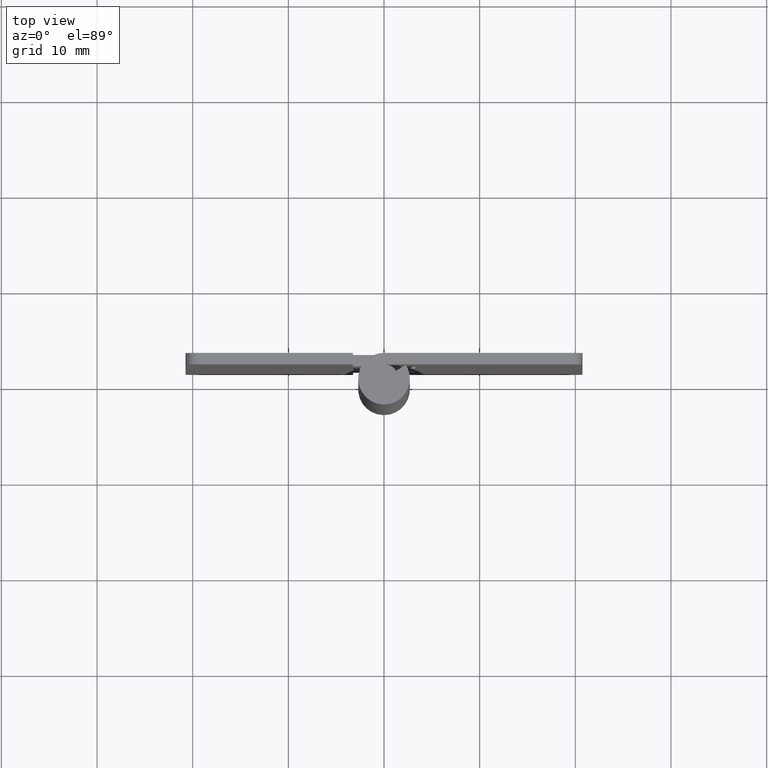
[diagram: clean part render]
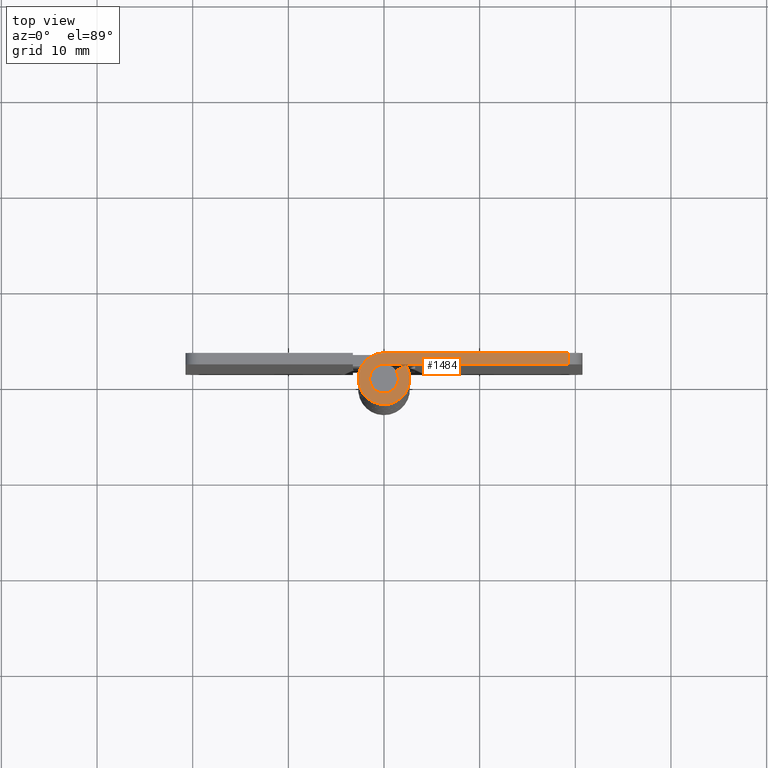
[diagram: same view with one face highlighted and labeled with its STEP entity id]
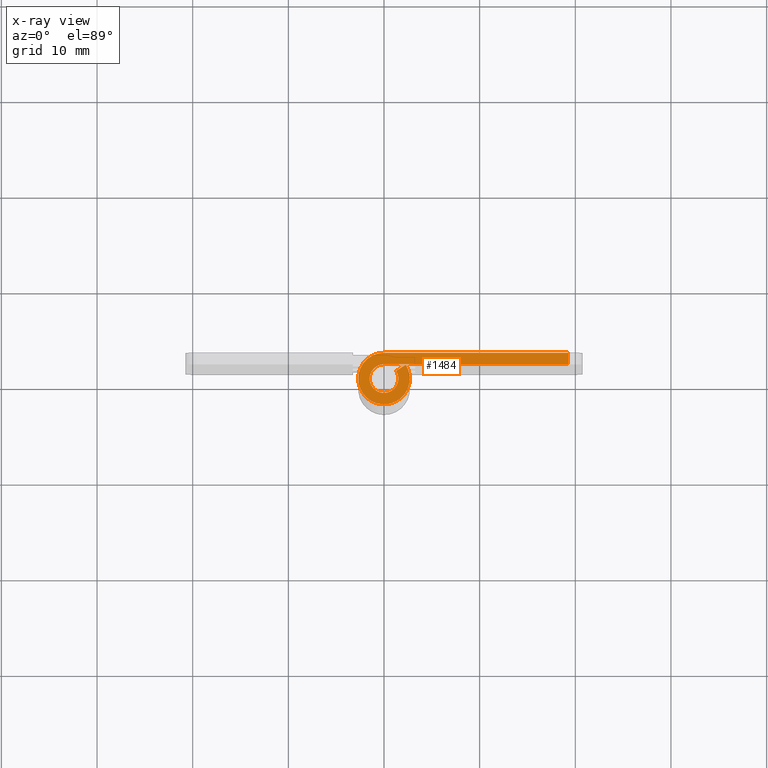
[diagram: x-ray of the same camera — body ghosted, the highlighted face saturated]
A machine part, top view. The second image highlights one B-rep face of the part: STEP entity #1484.
The next image is the same camera in x-ray: the body ghosted, the highlighted face saturated — about 0% of this face is hidden behind the body in this view.
In plain terms, the highlighted face is a freeform B-spline surface patch.
Its self-contained STEP definition (entity closure, byte-faithful):
#885=CARTESIAN_POINT('',(19.250000000000000,2.700001000000000,63.999992000000013));
#886=VERTEX_POINT('',#885);
#902=CARTESIAN_POINT('',(19.250000000000000,1.500000000000000,63.999992000000013));
#903=VERTEX_POINT('',#902);
#904=CARTESIAN_POINT('',(19.250000000000000,1.500000000000000,63.999992000000013));
#905=CARTESIAN_POINT('',(19.250000000000000,2.700001000000000,63.999992000000013));
#906=QUASI_UNIFORM_CURVE('',1,(#904,#905),.UNSPECIFIED.,.F.,.U.);
#907=EDGE_CURVE('',#903,#886,#906,.T.);
#1415=CARTESIAN_POINT('',(-3.796164023793855,-2.968774374443775,63.999992000000013));
#1416=CARTESIAN_POINT('',(20.346391703025741,-2.968774374443775,63.999992000000013));
#1417=CARTESIAN_POINT('',(-3.796164023793855,2.969685719784166,63.999992000000013));
#1418=CARTESIAN_POINT('',(20.346391703025741,2.969685719784166,63.999992000000013));
#1419=B_SPLINE_SURFACE_WITH_KNOTS('',1,1,((#1415,#1417),(#1416,#1418)),.UNSPECIFIED.,.F.,.F.,.U.,(2,2),(2,2),(0.0,24.142555726819591),(0.0,5.938460094227940),.UNSPECIFIED.);
#1420=CARTESIAN_POINT('',(0.0,1.500000000000000,63.999992000000113));
#1421=VERTEX_POINT('',#1420);
#1422=CARTESIAN_POINT('',(19.250000000000000,1.500000000000000,63.999992000000013));
#1423=CARTESIAN_POINT('',(0.0,1.500000000000000,63.999992000000113));
#1424=QUASI_UNIFORM_CURVE('',1,(#1422,#1423),.UNSPECIFIED.,.F.,.U.);
#1425=EDGE_CURVE('',#903,#1421,#1424,.T.);
#1426=ORIENTED_EDGE('',*,*,#1425,.F.);
#1427=ORIENTED_EDGE('',*,*,#907,.T.);
#1428=CARTESIAN_POINT('',(-4.959658E-016,2.700001000000000,63.999992000000113));
#1429=VERTEX_POINT('',#1428);
#1430=CARTESIAN_POINT('',(-4.959658E-016,2.700001000000000,63.999992000000113));
#1431=CARTESIAN_POINT('',(19.250000000000000,2.700001000000000,63.999992000000013));
#1432=QUASI_UNIFORM_CURVE('',1,(#1430,#1431),.UNSPECIFIED.,.F.,.U.);
#1433=EDGE_CURVE('',#1429,#886,#1432,.T.);
#1434=ORIENTED_EDGE('',*,*,#1433,.F.);
#1435=CARTESIAN_POINT('',(2.277608394786075,1.450000000000000,63.999992000000113));
#1436=VERTEX_POINT('',#1435);
#1437=CARTESIAN_POINT('',(2.277608394786075,1.450000000000000,63.999992000000113));
#1438=CARTESIAN_POINT('',(3.402759869743915,-0.317349209314442,63.999992000000105));
#1439=CARTESIAN_POINT('',(1.970201480756561,-1.846160747254171,63.999992000000113));
#1440=CARTESIAN_POINT('',(0.537643091769208,-3.374972285193899,63.999992000000105));
#1441=CARTESIAN_POINT('',(-1.299039008581214,-2.366961220879324,63.999992000000113));
#1442=CARTESIAN_POINT('',(-3.135721108931638,-1.358950156564748,63.999992000000105));
#1443=CARTESIAN_POINT('',(-2.615415633023442,0.670525611543911,63.999992000000113));
#1444=CARTESIAN_POINT('',(-2.095110157115246,2.700001379652570,63.999992000000105));
#1445=CARTESIAN_POINT('',(-4.959658E-016,2.700001000000000,63.999992000000113));
#1453=(BOUNDED_CURVE()B_SPLINE_CURVE(2,(#1437,#1438,#1439,#1440,#1441,#1442,#1443,#1444,#1445),.UNSPECIFIED.,.F.,.U.)B_SPLINE_CURVE_WITH_KNOTS((3,2,2,2,3),(0.0,0.250000000000000,0.500000000000000,0.750000000000000,1.0),.UNSPECIFIED.)CURVE()GEOMETRIC_REPRESENTATION_ITEM()RATIONAL_B_SPLINE_CURVE((1.0,0.790045133626194,1.0,0.790045133626194,1.0,0.790045133626194,1.0,0.790045133626194,1.0))REPRESENTATION_ITEM(''));
#1454=EDGE_CURVE('',#1436,#1429,#1453,.T.);
#1455=ORIENTED_EDGE('',*,*,#1454,.F.);
#1456=CARTESIAN_POINT('',(1.265337997103374,0.805555555555557,63.999992000000113));
#1457=VERTEX_POINT('',#1456);
#1458=CARTESIAN_POINT('',(1.265337997103374,0.805555555555557,63.999992000000113));
#1459=CARTESIAN_POINT('',(2.277608394786075,1.450000000000000,63.999992000000113));
#1460=QUASI_UNIFORM_CURVE('',1,(#1458,#1459),.UNSPECIFIED.,.F.,.U.);
#1461=EDGE_CURVE('',#1457,#1436,#1460,.T.);
#1462=ORIENTED_EDGE('',*,*,#1461,.F.);
#1463=CARTESIAN_POINT('',(1.265337997103374,0.805555555555557,63.999992000000113));
#1464=CARTESIAN_POINT('',(1.890422249647682,-0.176304541715816,63.999992000000105));
#1465=CARTESIAN_POINT('',(1.094556678899888,-1.025644030195490,63.999992000000113));
#1466=CARTESIAN_POINT('',(0.298691108152094,-1.874983518675165,63.999992000000105));
#1467=CARTESIAN_POINT('',(-0.721687836487032,-1.314977819838292,63.999992000000113));
#1468=CARTESIAN_POINT('',(-1.742066781126156,-0.754972121001419,63.999992000000105));
#1469=CARTESIAN_POINT('',(-1.453008384311226,0.372513939499290,63.999992000000113));
#1470=CARTESIAN_POINT('',(-1.163949987496296,1.500000000000001,63.999992000000105));
#1471=CARTESIAN_POINT('',(0.0,1.500000000000000,63.999992000000113));
#1479=(BOUNDED_CURVE()B_SPLINE_CURVE(2,(#1463,#1464,#1465,#1466,#1467,#1468,#1469,#1470,#1471),.UNSPECIFIED.,.F.,.U.)B_SPLINE_CURVE_WITH_KNOTS((3,2,2,2,3),(0.0,0.250000000000000,0.500000000000000,0.750000000000000,1.0),.UNSPECIFIED.)CURVE()GEOMETRIC_REPRESENTATION_ITEM()RATIONAL_B_SPLINE_CURVE((1.0,0.790045133626194,1.0,0.790045133626194,1.0,0.790045133626194,1.0,0.790045133626194,1.0))REPRESENTATION_ITEM(''));
#1480=EDGE_CURVE('',#1457,#1421,#1479,.T.);
#1481=ORIENTED_EDGE('',*,*,#1480,.T.);
#1482=EDGE_LOOP('',(#1426,#1427,#1434,#1455,#1462,#1481));
#1483=FACE_OUTER_BOUND('',#1482,.T.);
#1484=ADVANCED_FACE('',(#1483),#1419,.T.);